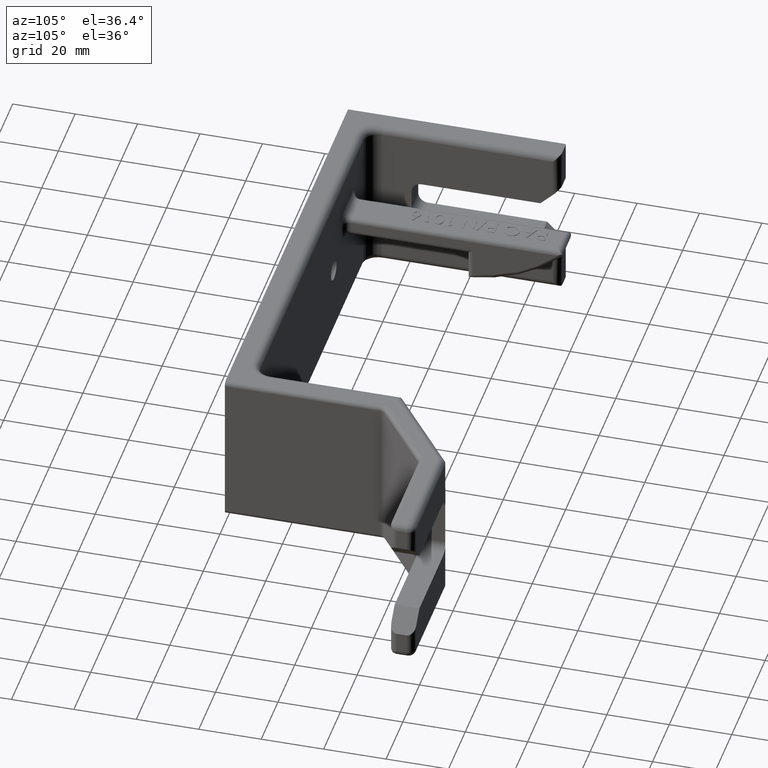
[diagram: clean part render]
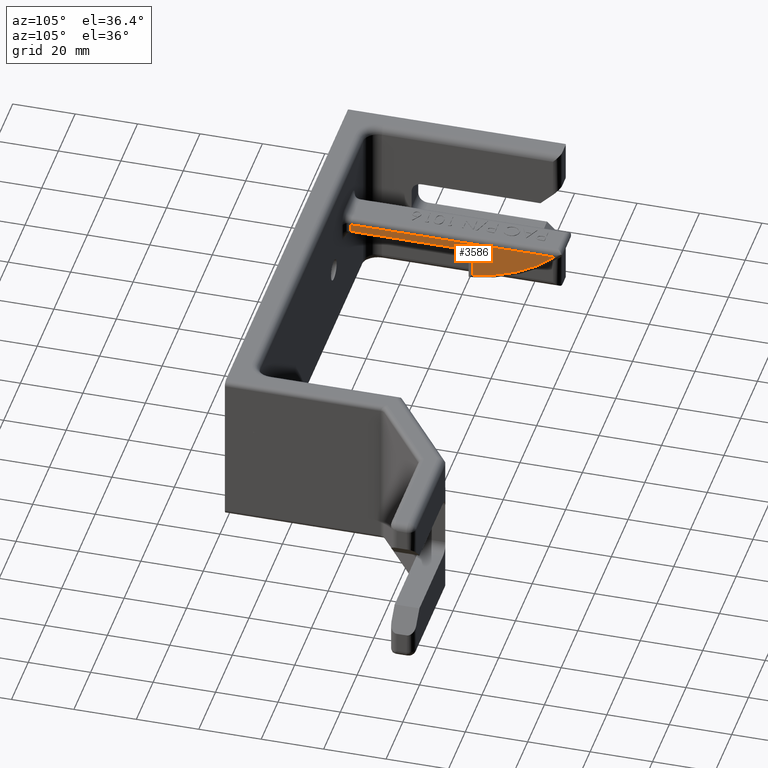
[diagram: same view with one face highlighted and labeled with its STEP entity id]
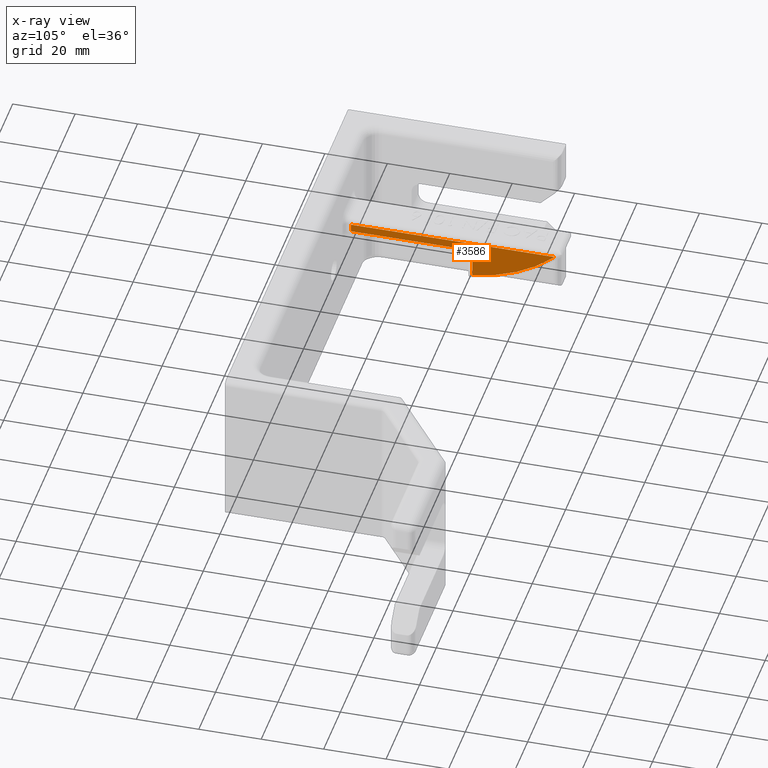
[diagram: x-ray of the same camera — body ghosted, the highlighted face saturated]
A machine part, auxiliary view. The second image highlights one B-rep face of the part: STEP entity #3586.
The next image is the same camera in x-ray: the body ghosted, the highlighted face saturated — about 0% of this face is hidden behind the body in this view.
In plain terms, the highlighted planar face has unit normal (1, 0, 0).
Its self-contained STEP definition (entity closure, byte-faithful):
#309 = EDGE_CURVE ( 'NONE', #7808, #5499, #2204, .T. ) ;
#377 = CARTESIAN_POINT ( 'NONE',  ( -1.502500000000000200, 1.875000000000000000, 0.2125000000000000500 ) ) ;
#837 = LINE ( 'NONE', #2628, #2669 ) ;
#961 = CARTESIAN_POINT ( 'NONE',  ( -1.502500000000000200, 1.906000000000000100, -0.1914756427441151600 ) ) ;
#1357 = CARTESIAN_POINT ( 'NONE',  ( -1.502500000000000200, 0.4062500000000000600, 0.3125000000000000000 ) ) ;
#1722 = DIRECTION ( 'NONE',  ( 1.000000000000000000, 0.0000000000000000000, 0.0000000000000000000 ) ) ;
#2030 = CARTESIAN_POINT ( 'NONE',  ( -1.502500000000000200, 1.745301150534218400, 1.645508810042672700 ) ) ;
#2204 = LINE ( 'NONE', #377, #8163 ) ;
#2258 = CARTESIAN_POINT ( 'NONE',  ( -1.502500000000000200, 1.937500000000000200, -0.1623447400125446200 ) ) ;
#2628 = CARTESIAN_POINT ( 'NONE',  ( -1.502500000000000200, 0.4062500000000000600, -0.1914756427441151600 ) ) ;
#2669 = VECTOR ( 'NONE', #8836, 39.37007874015748100 ) ;
#2694 = CARTESIAN_POINT ( 'NONE',  ( -1.502500000000000200, 2.973406912408422400, 0.3125000000000000000 ) ) ;
#2832 = DIRECTION ( 'NONE',  ( 0.0000000000000000000, 0.0000000000000000000, -1.000000000000000000 ) ) ;
#2926 = FACE_OUTER_BOUND ( 'NONE', #5446, .T. ) ;
#3260 = CARTESIAN_POINT ( 'NONE',  ( -1.502500000000000200, 1.906000000000000100, 0.3125000000000000000 ) ) ;
#3365 = VECTOR ( 'NONE', #7729, 39.37007874015748100 ) ;
#3586 = ADVANCED_FACE ( 'NONE', ( #2926 ), #6380, .T. ) ;
#3829 = ORIENTED_EDGE ( 'NONE', *, *, #4407, .T. ) ;
#3854 = EDGE_CURVE ( 'NONE', #4674, #8763, #8627, .T. ) ;
#4230 = LINE ( 'NONE', #3260, #8121 ) ;
#4407 = EDGE_CURVE ( 'NONE', #4581, #7808, #837, .T. ) ;
#4581 = VERTEX_POINT ( 'NONE', #1357 ) ;
#4674 = VERTEX_POINT ( 'NONE', #6242 ) ;
#4941 = CARTESIAN_POINT ( 'NONE',  ( -1.502500000000000200, 0.4062500000000000600, 0.2125000000000000500 ) ) ;
#5018 = DIRECTION ( 'NONE',  ( 0.0000000000000000000, 1.000000000000000000, 0.0000000000000000000 ) ) ;
#5446 = EDGE_LOOP ( 'NONE', ( #8016, #8922, #3829, #7676, #7715 ) ) ;
#5499 = VERTEX_POINT ( 'NONE', #5868 ) ;
#5868 = CARTESIAN_POINT ( 'NONE',  ( -1.502500000000000200, 1.937500000000000000, 0.2125000000000000500 ) ) ;
#6242 = CARTESIAN_POINT ( 'NONE',  ( -1.502500000000000200, 1.937500000000000200, -0.1567719262090441200 ) ) ;
#6380 = PLANE ( 'NONE',  #7986 ) ;
#7118 = DIRECTION ( 'NONE',  ( 0.0000000000000000000, -1.000000000000000000, 0.0000000000000000000 ) ) ;
#7157 = DIRECTION ( 'NONE',  ( 0.0000000000000000000, 0.0000000000000000000, -1.000000000000000000 ) ) ;
#7319 = AXIS2_PLACEMENT_3D ( 'NONE', #2030, #7461, #2832 ) ;
#7461 = DIRECTION ( 'NONE',  ( 1.000000000000000000, 0.0000000000000000000, 0.0000000000000000000 ) ) ;
#7676 = ORIENTED_EDGE ( 'NONE', *, *, #309, .T. ) ;
#7715 = ORIENTED_EDGE ( 'NONE', *, *, #8203, .T. ) ;
#7729 = DIRECTION ( 'NONE',  ( 0.0000000000000000000, 8.000125489803599000E-016, -1.000000000000000000 ) ) ;
#7808 = VERTEX_POINT ( 'NONE', #4941 ) ;
#7986 = AXIS2_PLACEMENT_3D ( 'NONE', #961, #1722, #7157 ) ;
#8016 = ORIENTED_EDGE ( 'NONE', *, *, #3854, .T. ) ;
#8121 = VECTOR ( 'NONE', #7118, 39.37007874015748100 ) ;
#8163 = VECTOR ( 'NONE', #5018, 39.37007874015748100 ) ;
#8203 = EDGE_CURVE ( 'NONE', #5499, #4674, #9557, .T. ) ;
#8411 = EDGE_CURVE ( 'NONE', #8763, #4581, #4230, .T. ) ;
#8627 = CIRCLE ( 'NONE', #7319, 1.812500000000000200 ) ;
#8763 = VERTEX_POINT ( 'NONE', #2694 ) ;
#8836 = DIRECTION ( 'NONE',  ( 0.0000000000000000000, 0.0000000000000000000, -1.000000000000000000 ) ) ;
#8922 = ORIENTED_EDGE ( 'NONE', *, *, #8411, .T. ) ;
#9557 = LINE ( 'NONE', #2258, #3365 ) ;